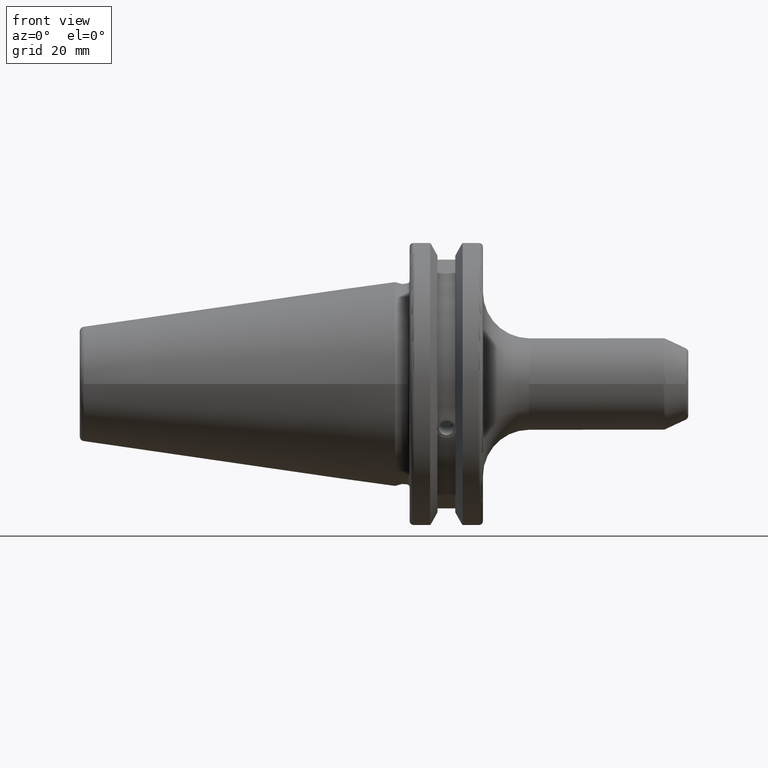
[diagram: clean part render]
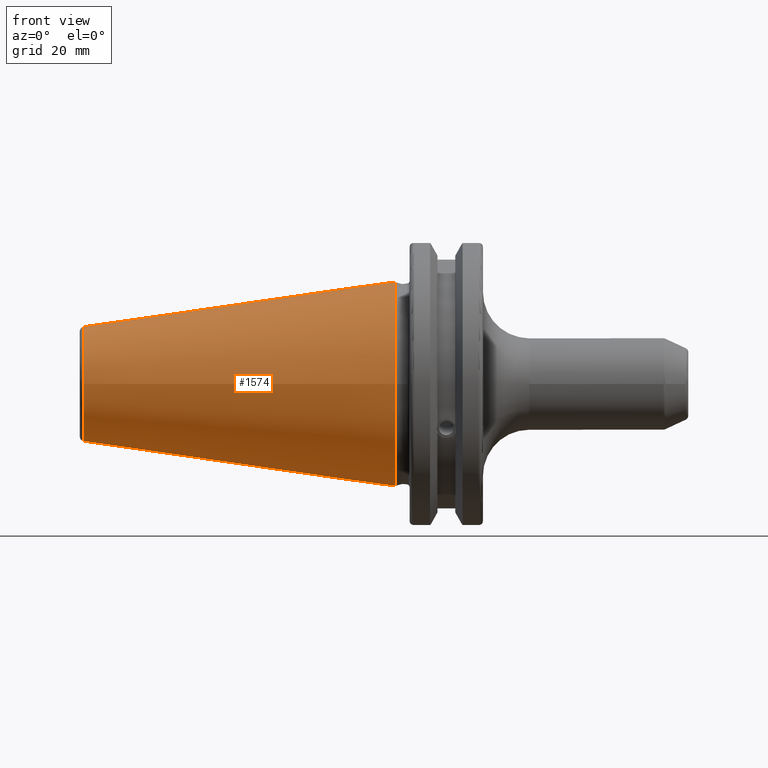
[diagram: same view with one face highlighted and labeled with its STEP entity id]
A machine part, front view. The second image highlights one B-rep face of the part: STEP entity #1574.
In plain terms, the highlighted conical surface has half-angle 8.297 deg.
Its self-contained STEP definition (entity closure, byte-faithful):
#57=CONICAL_SURFACE('',#1767,17.2484375,0.144812498238939);
#171=LINE('',#3059,#265);
#265=VECTOR('',#2170,17.2484375);
#422=FACE_OUTER_BOUND('',#523,.T.);
#523=EDGE_LOOP('',(#1374,#1375,#1376,#1377,#1378));
#614=CIRCLE('',#1761,12.3966635780937);
#615=CIRCLE('',#1762,12.3966635780937);
#619=CIRCLE('',#1768,22.225);
#774=VERTEX_POINT('',#3046);
#775=VERTEX_POINT('',#3047);
#778=VERTEX_POINT('',#3057);
#989=EDGE_CURVE('',#774,#775,#614,.T.);
#990=EDGE_CURVE('',#775,#774,#615,.T.);
#994=EDGE_CURVE('',#778,#778,#619,.T.);
#995=EDGE_CURVE('',#778,#775,#171,.T.);
#1374=ORIENTED_EDGE('',*,*,#994,.F.);
#1375=ORIENTED_EDGE('',*,*,#995,.T.);
#1376=ORIENTED_EDGE('',*,*,#989,.F.);
#1377=ORIENTED_EDGE('',*,*,#990,.F.);
#1378=ORIENTED_EDGE('',*,*,#995,.F.);
#1574=ADVANCED_FACE('',(#422),#57,.T.);
#1761=AXIS2_PLACEMENT_3D('',#3048,#2154,#2155);
#1762=AXIS2_PLACEMENT_3D('',#3049,#2156,#2157);
#1767=AXIS2_PLACEMENT_3D('',#3056,#2166,#2167);
#1768=AXIS2_PLACEMENT_3D('',#3058,#2168,#2169);
#2154=DIRECTION('center_axis',(-1.,0.,0.));
#2155=DIRECTION('ref_axis',(0.,-1.,3.06161699786838E-17));
#2156=DIRECTION('center_axis',(-1.,0.,0.));
#2157=DIRECTION('ref_axis',(0.,-1.,3.06161699786838E-17));
#2166=DIRECTION('center_axis',(1.,0.,0.));
#2167=DIRECTION('ref_axis',(0.,1.,0.));
#2168=DIRECTION('center_axis',(1.,0.,0.));
#2169=DIRECTION('ref_axis',(0.,0.,-1.));
#2170=DIRECTION('',(-0.989532981063282,0.144306893071729,1.76724974695192E-17));
#3046=CARTESIAN_POINT('',(-67.3943068930717,-1.5181534371019E-15,12.3966635780937));
#3047=CARTESIAN_POINT('',(-67.3943068930718,-12.3966635780937,-1.5181534371019E-15));
#3048=CARTESIAN_POINT('Origin',(-67.3943068930717,0.,-1.89769179637738E-15));
#3049=CARTESIAN_POINT('Origin',(-67.3943068930717,0.,-1.89769179637738E-15));
#3056=CARTESIAN_POINT('Origin',(-34.125,0.,0.));
#3057=CARTESIAN_POINT('',(0.,-22.225,-2.72177751110499E-15));
#3058=CARTESIAN_POINT('Origin',(0.,0.,0.));
#3059=CARTESIAN_POINT('',(-34.125,-17.2484375,-2.11232437746682E-15));